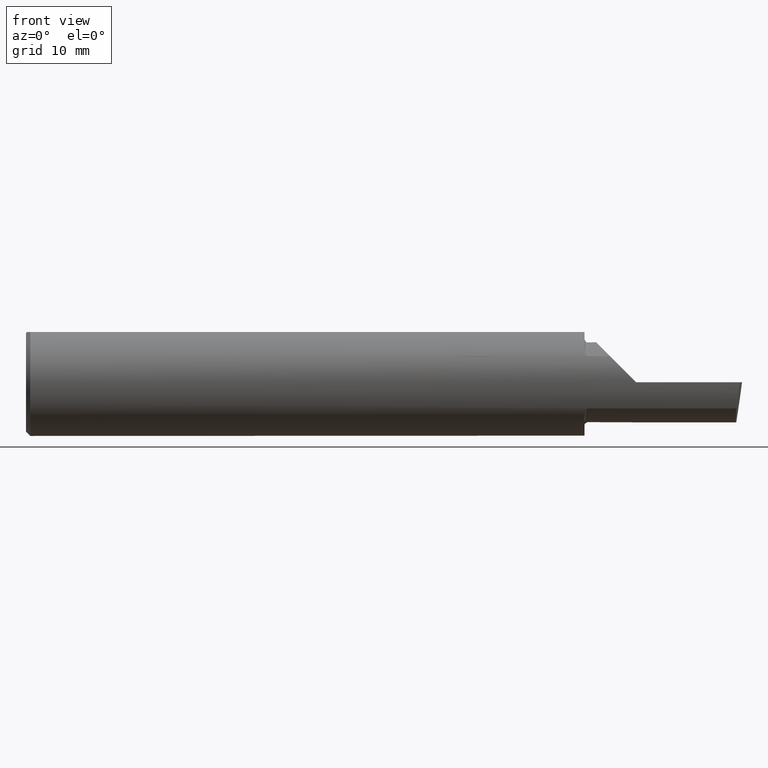
[diagram: clean part render]
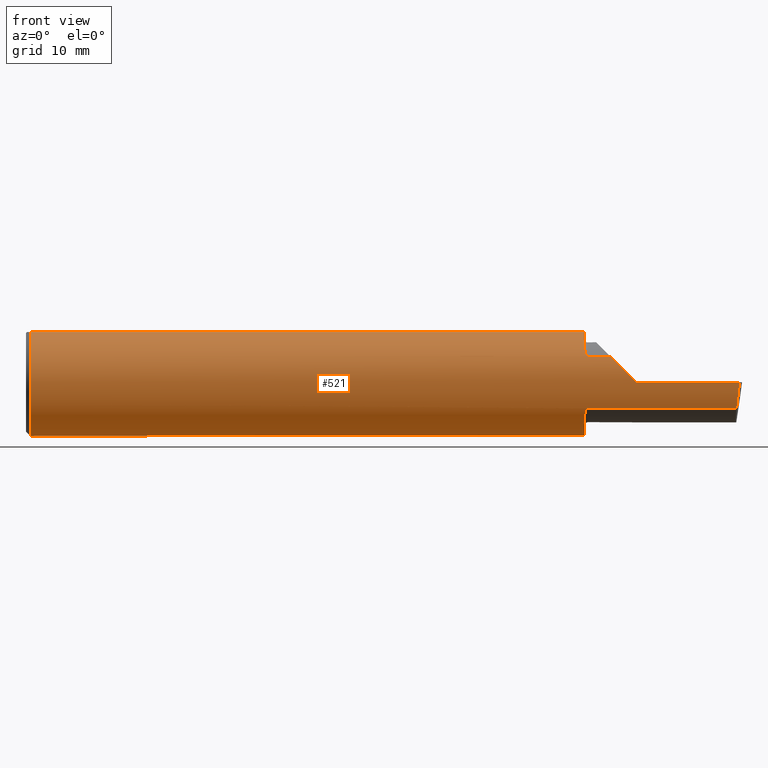
[diagram: same view with one face highlighted and labeled with its STEP entity id]
A machine part, front view. The second image highlights one B-rep face of the part: STEP entity #521.
In plain terms, the highlighted cylindrical surface (partial cylindrical patch) has radius 4.7587 mm, axis along (-1, -0, -0).
Its self-contained STEP definition (entity closure, byte-faithful):
#2 = DIRECTION ( 'NONE',  ( -1.000000000000000000, -0.000000000000000000, -0.000000000000000000 ) ) ;
#4 = CARTESIAN_POINT ( 'NONE',  ( 1.949999999999999956, -0.1434410963562314512, 0.1207567927018309145 ) ) ;
#6 = AXIS2_PLACEMENT_3D ( 'NONE', #295, #445, #298 ) ;
#8 = CARTESIAN_POINT ( 'NONE',  ( 0.000000000000000000, -0.06597272163553657975, 0.1753499999999999781 ) ) ;
#17 = DIRECTION ( 'NONE',  ( 0.000000000000000000, 1.000000000000000000, 0.000000000000000000 ) ) ;
#25 = CARTESIAN_POINT ( 'NONE',  ( 1.956503643436637629, -0.1620795007490425099, -0.09397341491037392025 ) ) ;
#29 = CARTESIAN_POINT ( 'NONE',  ( 1.949999999999999956, -0.06597272163553659363, 0.1753499999999999781 ) ) ;
#44 = CIRCLE ( 'NONE', #269, 0.1873499999999999888 ) ;
#46 = VERTEX_POINT ( 'NONE', #343 ) ;
#51 = CARTESIAN_POINT ( 'NONE',  ( 2.491672876940991710, -0.1873499999999999888, 6.915950918908297591E-17 ) ) ;
#61 = CARTESIAN_POINT ( 'NONE',  ( 1.950000000000000178, -0.1434457138613161042, -0.1207517378170856193 ) ) ;
#64 = DIRECTION ( 'NONE',  ( 1.000000000000000000, 6.829619984160658046E-18, 0.000000000000000000 ) ) ;
#65 = CARTESIAN_POINT ( 'NONE',  ( 1.958216394543444761, -0.1632528125625386517, 0.09191892236924094350 ) ) ;
#70 = VERTEX_POINT ( 'NONE', #102 ) ;
#72 = CARTESIAN_POINT ( 'NONE',  ( 1.958200855161537968, -0.1632467142437131757, -0.09192985110639270707 ) ) ;
#74 = CARTESIAN_POINT ( 'NONE',  ( 1.949999999999999956, 0.06597272163553663527, 0.1753499999999999781 ) ) ;
#76 = CARTESIAN_POINT ( 'NONE',  ( 1.959999999999999964, -0.1635956445993023423, -0.09130436773856262511 ) ) ;
#78 = ORIENTED_EDGE ( 'NONE', *, *, #426, .T. ) ;
#84 = CARTESIAN_POINT ( 'NONE',  ( 2.129999999999999893, -0.1873499999999999888, 1.065442715258197396E-16 ) ) ;
#86 = DIRECTION ( 'NONE',  ( 0.000000000000000000, 1.000000000000000000, 0.000000000000000000 ) ) ;
#87 = B_SPLINE_CURVE_WITH_KNOTS ( 'NONE', 3,
 ( #76, #174, #72, #129, #25, #308, #496, #324, #394, #162, #61, #551 ),
 .UNSPECIFIED., .F., .F.,
 ( 4, 2, 2, 2, 2, 4 ),
 ( 1.968964099585697094E-07, 7.414172666648438453E-05, 0.0001480865569230101957, 0.0002959762174360514638, 0.0005917555384621339459, 0.001183314180514301404 ),
 .UNSPECIFIED. ) ;
#88 = ORIENTED_EDGE ( 'NONE', *, *, #178, .F. ) ;
#99 = CARTESIAN_POINT ( 'NONE',  ( 2.491672876940991710, -0.1873499999999999888, 6.915950918908297591E-17 ) ) ;
#102 = CARTESIAN_POINT ( 'NONE',  ( 0.01499999999999999424, 0.000000000000000000, -0.1873499999999999888 ) ) ;
#105 = LINE ( 'NONE', #208, #575 ) ;
#112 = CARTESIAN_POINT ( 'NONE',  ( 1.959999999999999964, -0.1635956445993023423, -0.09130436773856262511 ) ) ;
#121 = CARTESIAN_POINT ( 'NONE',  ( 1.957002686248069612, -0.1625222757049321343, 0.09320450095779687916 ) ) ;
#125 = DIRECTION ( 'NONE',  ( 1.000000000000000000, 6.829619984160658046E-18, 0.000000000000000000 ) ) ;
#126 = ORIENTED_EDGE ( 'NONE', *, *, #490, .F. ) ;
#129 = CARTESIAN_POINT ( 'NONE',  ( 1.956977885846546306, -0.1625039841807080776, -0.09323648621225624766 ) ) ;
#130 = CIRCLE ( 'NONE', #370, 0.1873499999999999888 ) ;
#143 = DIRECTION ( 'NONE',  ( 1.000000000000000000, 0.000000000000000000, 0.000000000000000000 ) ) ;
#146 = EDGE_CURVE ( 'NONE', #220, #507, #567, .T. ) ;
#150 = CARTESIAN_POINT ( 'NONE',  ( 1.953030094855348286, -0.1569359418858940758, 0.1023945457153810634 ) ) ;
#151 = LINE ( 'NONE', #238, #553 ) ;
#162 = CARTESIAN_POINT ( 'NONE',  ( 1.950535130224571922, -0.1482744458446704217, -0.1147666934430604108 ) ) ;
#174 = CARTESIAN_POINT ( 'NONE',  ( 1.959014641741960938, -0.1635956445993026198, -0.09130436773856262511 ) ) ;
#175 = VERTEX_POINT ( 'NONE', #265 ) ;
#178 = EDGE_CURVE ( 'NONE', #193, #287, #87, .T. ) ;
#180 = VERTEX_POINT ( 'NONE', #450 ) ;
#187 = ORIENTED_EDGE ( 'NONE', *, *, #325, .T. ) ;
#193 = VERTEX_POINT ( 'NONE', #112 ) ;
#195 = EDGE_CURVE ( 'NONE', #507, #422, #548, .T. ) ;
#202 = CARTESIAN_POINT ( 'NONE',  ( 2.066758987970638284, -0.1792580844883770730, 0.06324101202936138755 ) ) ;
#208 = CARTESIAN_POINT ( 'NONE',  ( 2.075000000000000178, -0.1635956445993030084, -0.09130436773856176469 ) ) ;
#214 = CARTESIAN_POINT ( 'NONE',  ( 0.01499999999999999424, 0.000000000000000000, 0.000000000000000000 ) ) ;
#220 = VERTEX_POINT ( 'NONE', #604 ) ;
#227 = VERTEX_POINT ( 'NONE', #29 ) ;
#231 = CIRCLE ( 'NONE', #466, 0.1873499999999999888 ) ;
#238 = CARTESIAN_POINT ( 'NONE',  ( 0.000000000000000000, 0.06597272163553663527, 0.1753499999999999781 ) ) ;
#261 =( BOUNDED_CURVE ( )  B_SPLINE_CURVE ( 3, ( #84, #340, #202, #420 ),
 .UNSPECIFIED., .F., .T. ) 
 B_SPLINE_CURVE_WITH_KNOTS ( ( 4, 4 ),
 ( 4.712388980384689674, 5.221437360734125122 ),
 .UNSPECIFIED. ) 
 CURVE ( )  GEOMETRIC_REPRESENTATION_ITEM ( )  RATIONAL_B_SPLINE_CURVE ( ( 1.000000000000000000, 0.9785221379938656705, 0.9785221379938656705, 1.000000000000000000 ) ) 
 REPRESENTATION_ITEM ( '' )  );
#265 = CARTESIAN_POINT ( 'NONE',  ( 2.481080296960508580, -0.1635956445993030084, -0.09130436773856176469 ) ) ;
#269 = AXIS2_PLACEMENT_3D ( 'NONE', #578, #379, #86 ) ;
#271 = CARTESIAN_POINT ( 'NONE',  ( 1.956530533518344717, -0.1621041320318378220, 0.09393089788995234724 ) ) ;
#283 = CARTESIAN_POINT ( 'NONE',  ( 2.487725449370724817, -0.1873500000000000443, -0.03213820089768506388 ) ) ;
#284 = ORIENTED_EDGE ( 'NONE', *, *, #285, .T. ) ;
#285 = EDGE_CURVE ( 'NONE', #46, #422, #261, .T. ) ;
#286 = CARTESIAN_POINT ( 'NONE',  ( 2.038695632261437130, -0.1635956445993029529, 0.09130436773856191734 ) ) ;
#287 = VERTEX_POINT ( 'NONE', #332 ) ;
#292 = CARTESIAN_POINT ( 'NONE',  ( 2.484117089522337452, -0.1792580844883771007, -0.06324101202936138755 ) ) ;
#295 = CARTESIAN_POINT ( 'NONE',  ( 0.000000000000000000, 0.000000000000000000, 0.000000000000000000 ) ) ;
#298 = DIRECTION ( 'NONE',  ( 0.000000000000000000, 0.000000000000000000, 1.000000000000000000 ) ) ;
#308 = CARTESIAN_POINT ( 'NONE',  ( 1.955249642630817686, -0.1607705839484627197, -0.09620717711675648431 ) ) ;
#310 = VERTEX_POINT ( 'NONE', #99 ) ;
#322 = AXIS2_PLACEMENT_3D ( 'NONE', #336, #2, #520 ) ;
#324 = CARTESIAN_POINT ( 'NONE',  ( 1.953013987655237482, -0.1568958379530025760, -0.1024560150687161136 ) ) ;
#325 = EDGE_CURVE ( 'NONE', #175, #310, #608, .T. ) ;
#332 = CARTESIAN_POINT ( 'NONE',  ( 1.949999999999999956, -0.1383256097560974507, -0.1263568288047932642 ) ) ;
#336 = CARTESIAN_POINT ( 'NONE',  ( 0.01499999999999999424, 0.000000000000000000, 0.000000000000000000 ) ) ;
#340 = CARTESIAN_POINT ( 'NONE',  ( 2.097861799102314961, -0.1873500000000000165, 0.03213820089768509858 ) ) ;
#342 = DIRECTION ( 'NONE',  ( -1.000000000000000000, -0.000000000000000000, -0.000000000000000000 ) ) ;
#343 = CARTESIAN_POINT ( 'NONE',  ( 2.129999999999999893, -0.1873499999999999888, 1.065442715258197396E-16 ) ) ;
#345 = CARTESIAN_POINT ( 'NONE',  ( 0.01499999999999997863, -0.06597272163553657975, 0.1753499999999999781 ) ) ;
#347 = LINE ( 'NONE', #531, #392 ) ;
#352 = CARTESIAN_POINT ( 'NONE',  ( 1.959029114488071599, -0.1635956446012892529, 0.09130436773500420766 ) ) ;
#355 = DIRECTION ( 'NONE',  ( -1.000000000000000000, -0.000000000000000000, -0.000000000000000000 ) ) ;
#365 = ORIENTED_EDGE ( 'NONE', *, *, #417, .F. ) ;
#370 = AXIS2_PLACEMENT_3D ( 'NONE', #214, #342, #396 ) ;
#379 = DIRECTION ( 'NONE',  ( 1.000000000000000000, 6.829619984160658046E-18, 0.000000000000000000 ) ) ;
#383 = CARTESIAN_POINT ( 'NONE',  ( 1.950530357231195167, -0.1482623167742066761, 0.1147852156680475577 ) ) ;
#386 = ORIENTED_EDGE ( 'NONE', *, *, #146, .F. ) ;
#392 = VECTOR ( 'NONE', #355, 39.37007874015748143 ) ;
#393 = CARTESIAN_POINT ( 'NONE',  ( 1.949999999999999956, 0.000000000000000000, 0.000000000000000000 ) ) ;
#394 = CARTESIAN_POINT ( 'NONE',  ( 1.952284340146847486, -0.1548226717605713232, -0.1055657780131315504 ) ) ;
#396 = DIRECTION ( 'NONE',  ( 0.000000000000000000, 0.000000000000000000, 1.000000000000000000 ) ) ;
#398 = EDGE_LOOP ( 'NONE', ( #126, #187, #609, #284, #410, #386, #546, #501, #402, #459, #78, #365, #88 ) ) ;
#400 = DIRECTION ( 'NONE',  ( -1.000000000000000000, -6.829619984160658046E-18, -0.000000000000000000 ) ) ;
#402 = ORIENTED_EDGE ( 'NONE', *, *, #434, .F. ) ;
#403 = CARTESIAN_POINT ( 'NONE',  ( 1.959999999999999964, -0.1635956445993024533, 0.09130436773856250021 ) ) ;
#406 = CARTESIAN_POINT ( 'NONE',  ( 2.075000000000000178, -0.1635956445993030084, 0.09130436773856176469 ) ) ;
#410 = ORIENTED_EDGE ( 'NONE', *, *, #195, .F. ) ;
#417 = EDGE_CURVE ( 'NONE', #287, #614, #44, .T. ) ;
#418 = CARTESIAN_POINT ( 'NONE',  ( 2.481080296960508580, -0.1635956445993030084, -0.09130436773856176469 ) ) ;
#420 = CARTESIAN_POINT ( 'NONE',  ( 2.038695632261437130, -0.1635956445993029529, 0.09130436773856191734 ) ) ;
#422 = VERTEX_POINT ( 'NONE', #286 ) ;
#423 = VECTOR ( 'NONE', #125, 39.37007874015748143 ) ;
#426 = EDGE_CURVE ( 'NONE', #180, #614, #151, .T. ) ;
#434 = EDGE_CURVE ( 'NONE', #70, #471, #584, .T. ) ;
#438 = LINE ( 'NONE', #8, #444 ) ;
#444 = VECTOR ( 'NONE', #491, 39.37007874015748143 ) ;
#445 = DIRECTION ( 'NONE',  ( -1.000000000000000000, -0.000000000000000000, -0.000000000000000000 ) ) ;
#450 = CARTESIAN_POINT ( 'NONE',  ( 0.01499999999999999424, 0.06597272163553663527, 0.1753499999999999781 ) ) ;
#459 = ORIENTED_EDGE ( 'NONE', *, *, #588, .F. ) ;
#466 = AXIS2_PLACEMENT_3D ( 'NONE', #393, #64, #17 ) ;
#471 = VERTEX_POINT ( 'NONE', #345 ) ;
#481 = EDGE_CURVE ( 'NONE', #310, #46, #347, .T. ) ;
#482 = CARTESIAN_POINT ( 'NONE',  ( 1.959999999999999964, -0.1635956445993024533, 0.09130436773856250021 ) ) ;
#490 = EDGE_CURVE ( 'NONE', #175, #193, #105, .T. ) ;
#491 = DIRECTION ( 'NONE',  ( -1.000000000000000000, -0.000000000000000000, -0.000000000000000000 ) ) ;
#492 = CARTESIAN_POINT ( 'NONE',  ( 1.955270962286582259, -0.1607994114084979609, 0.09615890281982709953 ) ) ;
#496 = CARTESIAN_POINT ( 'NONE',  ( 1.954627300813618795, -0.1598199155693377227, -0.09778034674766693246 ) ) ;
#501 = ORIENTED_EDGE ( 'NONE', *, *, #544, .T. ) ;
#507 = VERTEX_POINT ( 'NONE', #482 ) ;
#520 = DIRECTION ( 'NONE',  ( 0.000000000000000000, 0.000000000000000000, 1.000000000000000000 ) ) ;
#521 = ADVANCED_FACE ( 'NONE', ( #581 ), #596, .T. ) ;
#531 = CARTESIAN_POINT ( 'NONE',  ( 3.377502344341257155E-32, -0.1873499999999999610, 3.267291166268304703E-16 ) ) ;
#535 = CARTESIAN_POINT ( 'NONE',  ( 1.954651161669206383, -0.1598575446545089096, 0.09771880834312138275 ) ) ;
#544 = EDGE_CURVE ( 'NONE', #227, #471, #438, .T. ) ;
#546 = ORIENTED_EDGE ( 'NONE', *, *, #577, .F. ) ;
#548 = LINE ( 'NONE', #406, #423 ) ;
#551 = CARTESIAN_POINT ( 'NONE',  ( 1.949999999999999956, -0.1383256097560974507, -0.1263568288047932642 ) ) ;
#553 = VECTOR ( 'NONE', #143, 39.37007874015748143 ) ;
#567 = B_SPLINE_CURVE_WITH_KNOTS ( 'NONE', 3,
 ( #585, #4, #383, #576, #150, #535, #492, #271, #121, #65, #352, #403 ),
 .UNSPECIFIED., .F., .F.,
 ( 4, 2, 2, 2, 2, 4 ),
 ( 0.0009392928737449182056, 0.001524303482983968647, 0.001816808787603493760, 0.001963061439913252847, 0.002036187766068131740, 0.002109314092223011500 ),
 .UNSPECIFIED. ) ;
#575 = VECTOR ( 'NONE', #400, 39.37007874015748143 ) ;
#576 = CARTESIAN_POINT ( 'NONE',  ( 1.952291668372490241, -0.1548472237252441208, 0.1055305370847131469 ) ) ;
#577 = EDGE_CURVE ( 'NONE', #227, #220, #231, .T. ) ;
#578 = CARTESIAN_POINT ( 'NONE',  ( 1.949999999999999956, 0.000000000000000000, 0.000000000000000000 ) ) ;
#581 = FACE_OUTER_BOUND ( 'NONE', #398, .T. ) ;
#584 = CIRCLE ( 'NONE', #322, 0.1873499999999999888 ) ;
#585 = CARTESIAN_POINT ( 'NONE',  ( 1.949999999999999956, -0.1383256097560974507, 0.1263568288047932642 ) ) ;
#588 = EDGE_CURVE ( 'NONE', #180, #70, #130, .T. ) ;
#596 = CYLINDRICAL_SURFACE ( 'NONE', #6, 0.1873499999999999888 ) ;
#604 = CARTESIAN_POINT ( 'NONE',  ( 1.949999999999999956, -0.1383256097560974507, 0.1263568288047932642 ) ) ;
#608 =( BOUNDED_CURVE ( )  B_SPLINE_CURVE ( 3, ( #418, #292, #283, #51 ),
 .UNSPECIFIED., .F., .T. ) 
 B_SPLINE_CURVE_WITH_KNOTS ( ( 4, 4 ),
 ( 0.8516985021657650368, 1.360746882515200484 ),
 .UNSPECIFIED. ) 
 CURVE ( )  GEOMETRIC_REPRESENTATION_ITEM ( )  RATIONAL_B_SPLINE_CURVE ( ( 1.000000000000000000, 0.9785221379938656705, 0.9785221379938656705, 1.000000000000000000 ) ) 
 REPRESENTATION_ITEM ( '' )  );
#609 = ORIENTED_EDGE ( 'NONE', *, *, #481, .T. ) ;
#614 = VERTEX_POINT ( 'NONE', #74 ) ;